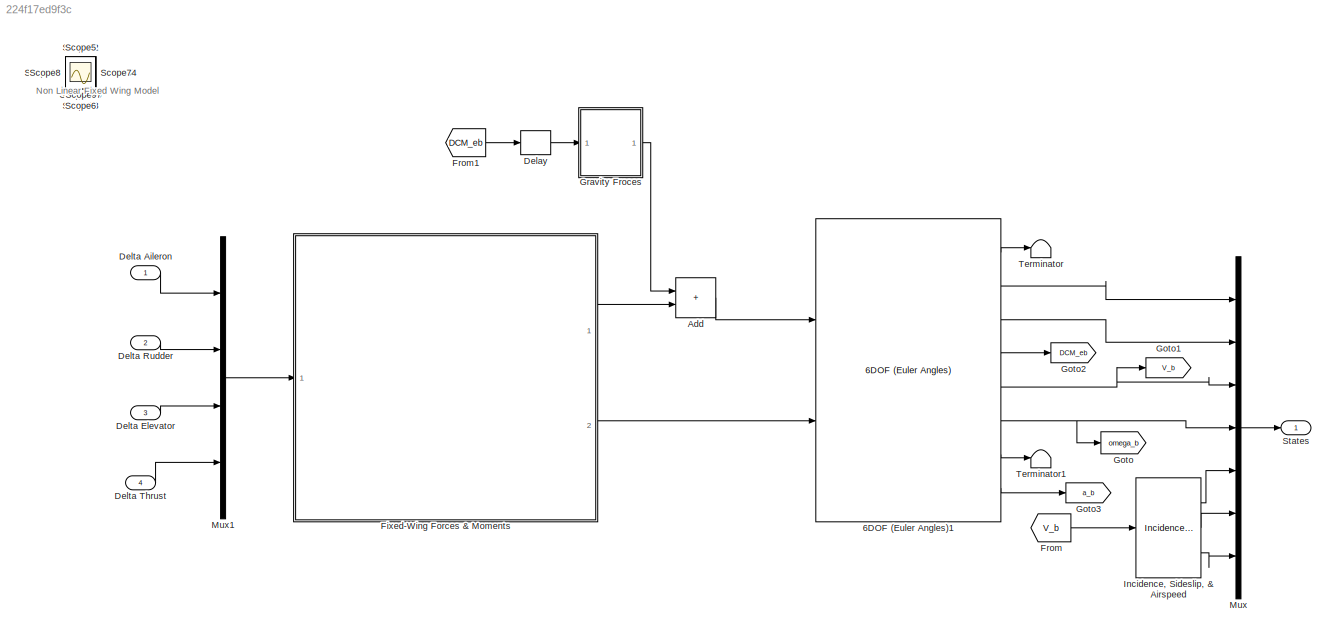
MODEL slx_224f17ed9f3c
KIND model
CONFIG AbsTol = auto
CONFIG EnableMultiTasking = off
CONFIG FixedStep = 0.01
CONFIG MaxStep = auto
CONFIG MinStep = auto
CONFIG RelTol = 1e-3
CONFIG SampleTimeConstraint = Unconstrained
CONFIG SolverName = ode4
CONFIG StartTime = 0.0
CONFIG StopTime = 200
WORKSPACE source: external: MAT-File  (data not in archive)
BLOCK [Reference] 6DOF (Euler Angles)1  REF=shared6dof/6DOF (Euler Angles)
  Ports = [2, 8]
  SourceBlock = shared6dof/6DOF (Euler Angles)
  SourceProductBaseCode = AE,PW,DR,MT,VE
  SourceType = 6DOF EoM (Body Axis)
BLOCK [Sum] Add
  IconShape = rectangular
  Inputs = 2
  Ports = [2, 1]
BLOCK [Delay] Delay
  DelayLength = 1
  InitialCondition = inv([cos(theta_0)*cos(psi_0) , (sin(phi_0)*sin(theta_0)*cos(psi_0)-cos(phi_0)*sin(psi_0)) , (cos(phi_0)*sin(theta_0)*cos(psi_0)+sin(phi_0)*sin(psi_0)) ; cos(theta_0)*sin(psi_0) , (sin(phi_0)*sin(theta_0)*sin(psi_0)+cos(phi_0)*cos(psi_0)) , (cos(phi_0)*sin(theta_0)*sin(psi_0)-sin(phi_0)*cos(psi_0)) ;  -sin(theta_0) ,  sin(phi_0)*cos(theta_0)  , cos(phi_0)*cos(theta_0)])
  InputPortMap = u0
  Ports = [1, 1]
BLOCK [Inport] Delta Aileron
BLOCK [Inport] Delta Elevator
  Port = 3
BLOCK [Inport] Delta Rudder
  Port = 2
BLOCK [Inport] Delta Thrust
  Port = 4
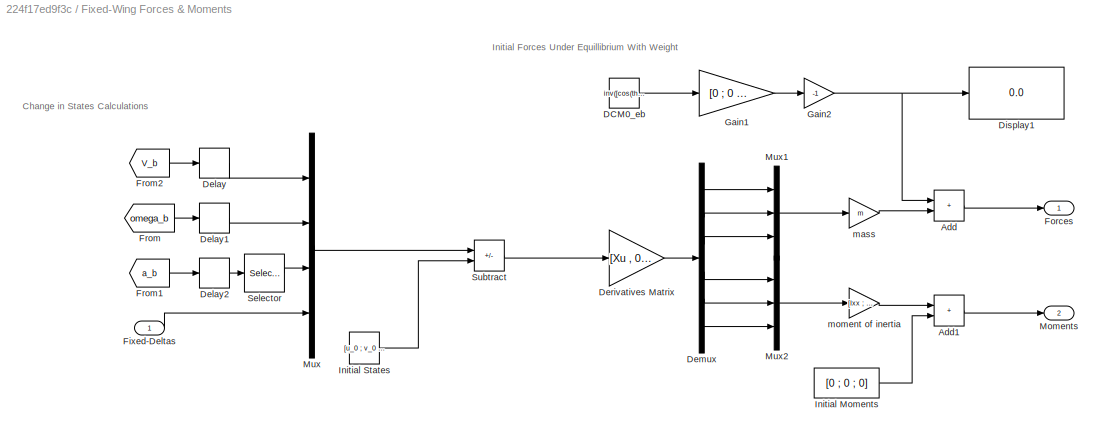
BLOCK [SubSystem] Fixed-Wing Forces & Moments
  Ports = [1, 2]
  RequestExecContextInheritance = off
BLOCK [Sum] Fixed-Wing Forces & Moments/Add
  IconShape = rectangular
  Ports = [2, 1]
BLOCK [Sum] Fixed-Wing Forces & Moments/Add1
  IconShape = rectangular
  Ports = [2, 1]
BLOCK [Constant] Fixed-Wing Forces & Moments/DCM0_eb
  Value = inv([cos(theta_0)*cos(psi_0) , (sin(phi_0)*sin(theta_0)*cos(psi_0)-cos(phi_0)*sin(psi_0)) , (cos(phi_0)*sin(theta_0)*cos(psi_0)+sin(phi_0)*sin(psi_0)) ; cos(theta_0)*sin(psi_0) , (sin(phi_0)*sin(theta_0)*sin(psi_0)+cos(phi_0)*cos(psi_0)) , (cos(phi_0)*sin(theta_0)*sin(psi_0)-sin(phi_0)*cos(psi_0)) ;  -sin(theta_0) ,  sin(phi_0)*cos(theta_0)  , cos(phi_0)*cos(theta_0)])
BLOCK [Delay] Fixed-Wing Forces & Moments/Delay
  DelayLength = 1
  InitialCondition = [u_0 v_0 w_0]
  InputPortMap = u0
  Ports = [1, 1]
BLOCK [Delay] Fixed-Wing Forces & Moments/Delay1
  DelayLength = 1
  InitialCondition = [p_0 q_0 r_0]
  InputPortMap = u0
  Ports = [1, 1]
BLOCK [Delay] Fixed-Wing Forces & Moments/Delay2
  DelayLength = 1
  InitialCondition = [0 0 wdot_0]
  InputPortMap = u0
  Ports = [1, 1]
BLOCK [Demux] Fixed-Wing Forces & Moments/Demux
  Outputs = 6
  Ports = [1, 6]
BLOCK [Gain] Fixed-Wing Forces & Moments/Derivatives Matrix
  Gain = [Xu , 0 , Xw , 0 , 0 , 0 , 0 , 0 , 0 , Xdel_e, Xdel_t ; 0 , Yv , 0 , 0 , 0 , 0 , 0 , 0 , Ydel_r , 0 , 0 ; Zu , 0 , Zw , 0 , Zq , 0 , Zw_dot , 0 , 0 , Zdel_e , Zdel_t ; 0 , Lv , 0 , Lp , 0 , Lr , 0 , Ldel_a , Ldel_r , 0 , 0 ; Mu , 0 , Mw , 0 , Mq , 0 , Mw_dot , 0 , 0 , Mdel_e , Mdel_t ; 0 , Nv , 0 , Np , 0 , Nr , 0 , Ndel_a , Ndel_r , 0 , 0]
  Multiplication = Matrix(K*u)
BLOCK [Display] Fixed-Wing Forces & Moments/Display1
  Decimation = 4
  Ports = [1]
BLOCK [Inport] Fixed-Wing Forces & Moments/Fixed-Deltas
BLOCK [Outport] Fixed-Wing Forces & Moments/Forces
BLOCK [From] Fixed-Wing Forces & Moments/From
  GotoTag = omega_b
  TagVisibility = global
BLOCK [From] Fixed-Wing Forces & Moments/From1
  GotoTag = a_b
  TagVisibility = global
BLOCK [From] Fixed-Wing Forces & Moments/From2
  GotoTag = V_b
  TagVisibility = global
BLOCK [Gain] Fixed-Wing Forces & Moments/Gain1
  Gain = [0 ; 0 ; m*g]
  Multiplication = Matrix(u*K)
BLOCK [Gain] Fixed-Wing Forces & Moments/Gain2
  Gain = -1
BLOCK [Constant] Fixed-Wing Forces & Moments/Initial Moments
  Value = [0 ; 0 ; 0]
BLOCK [Constant] Fixed-Wing Forces & Moments/Initial States
  Value = [u_0 ; v_0 ; w_0 ; p_0 ; q_0 ; r_0 ; wdot_0 ; 0 ; 0 ; 0 ; 0]
BLOCK [Outport] Fixed-Wing Forces & Moments/Moments 
  Port = 2
BLOCK [Mux] Fixed-Wing Forces & Moments/Mux
  DisplayOption = bar
  Ports = [4, 1]
BLOCK [Mux] Fixed-Wing Forces & Moments/Mux1
  DisplayOption = bar
  Inputs = 3
  Ports = [3, 1]
BLOCK [Mux] Fixed-Wing Forces & Moments/Mux2
  DisplayOption = bar
  Inputs = 3
  Ports = [3, 1]
BLOCK [Selector] Fixed-Wing Forces & Moments/Selector
  IndexOptions = Starting index (dialog)
  Indices = 3
  InputPortWidth = 3
  OutputSizes = 1
  Ports = [1, 1]
BLOCK [Sum] Fixed-Wing Forces & Moments/Subtract
  IconShape = rectangular
  Inputs = +-
  Ports = [2, 1]
BLOCK [Gain] Fixed-Wing Forces & Moments/mass
  Gain = m
BLOCK [Gain] Fixed-Wing Forces & Moments/moment of inertia
  Gain = [Ixx ; Iyy ; Izz]
BLOCK [From] From
  GotoTag = V_b
  TagVisibility = global
BLOCK [From] From1
  GotoTag = DCM_eb
  TagVisibility = global
BLOCK [Goto] Goto
  GotoTag = omega_b
  TagVisibility = global
BLOCK [Goto] Goto1
  GotoTag = V_b
  TagVisibility = global
BLOCK [Goto] Goto2
  GotoTag = DCM_eb
  TagVisibility = global
BLOCK [Goto] Goto3
  GotoTag = a_b
  TagVisibility = global
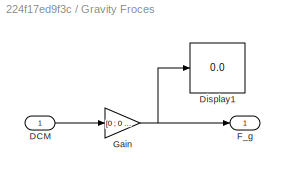
BLOCK [SubSystem] Gravity Froces
  Ports = [1, 1]
  RequestExecContextInheritance = off
BLOCK [Inport] Gravity Froces/DCM
BLOCK [Display] Gravity Froces/Display1
  Decimation = 1
  Ports = [1]
BLOCK [Outport] Gravity Froces/F_g
BLOCK [Gain] Gravity Froces/Gain
  Gain = [0 ; 0 ; m*g]
  Multiplication = Matrix(u*K)
BLOCK [Reference] Incidence, Sideslip, & Airspeed  REF=aerolibasang/Incidence, Sideslip,
& Airspeed
  Ports = [1, 3]
  SourceBlock = aerolibasang/Incidence, Sideslip,\n& Airspeed
  SourceProductBaseCode = AE
  SourceType = Incidence,Sideslip,&Airspeed
BLOCK [Mux] Mux
  DisplayOption = bar
  Inputs = 7
  Ports = [7, 1]
BLOCK [Mux] Mux1
  DisplayOption = bar
  Ports = [4, 1]
BLOCK [Scope] Scope
  Floating = off
  IOType = viewer
  NumInputPorts = 1
  Ports = []
  ScopeSpecificationString = Simulink.scopes.TimeScopeBlockCfg('CurrentConfiguration', extmgr.ConfigurationSet(extmgr.Configuration('Core','General UI',true),extmgr.Configuration('Core','Source UI',true),extmgr.Configuration('Sources','WiredSimulink',true,'DataLoggingVariableName','ScopeData3'),extmgr.Configuration('Visuals','Time Domain',true,'SerializedDisplays',{struct('MinYLimReal','-70.62606','MaxYLimReal','655.63458','Y...<+1463ch>
BLOCK [Scope] Scope1
  Floating = off
  IOType = viewer
  NumInputPorts = 1
  Ports = []
  ScopeSpecificationString = Simulink.scopes.TimeScopeBlockCfg('CurrentConfiguration', extmgr.ConfigurationSet(extmgr.Configuration('Core','General UI',true),extmgr.Configuration('Core','Source UI',true),extmgr.Configuration('Sources','WiredSimulink',true),extmgr.Configuration('Visuals','Time Domain',true,'SerializedDisplays',{struct('MinYLimReal','-3.91421','MaxYLimReal','3.92544','YLabelReal','','MinYLimMag','0.00000','MaxY...<+1414ch>
BLOCK [Scope] Scope10
  Floating = off
  IOType = viewer
  NumInputPorts = 1
  Ports = []
  ScopeSpecificationString = Simulink.scopes.TimeScopeBlockCfg('CurrentConfiguration', extmgr.ConfigurationSet(extmgr.Configuration('Core','General UI',true),extmgr.Configuration('Core','Source UI',true),extmgr.Configuration('Sources','WiredSimulink',true,'DataLoggingVariableName','ScopeData1'),extmgr.Configuration('Visuals','Time Domain',true,'SerializedDisplays',{struct('MinYLimReal','-4.53719','MaxYLimReal','4.28173','YLab...<+1359ch>
BLOCK [Scope] Scope11
  Floating = off
  IOType = viewer
  NumInputPorts = 1
  Ports = []
  ScopeSpecificationString = Simulink.scopes.TimeScopeBlockCfg('CurrentConfiguration', extmgr.ConfigurationSet(extmgr.Configuration('Core','General UI',true),extmgr.Configuration('Core','Source UI',true),extmgr.Configuration('Sources','WiredSimulink',true,'DataLoggingVariableName','ScopeData2'),extmgr.Configuration('Visuals','Time Domain',true,'SerializedDisplays',{struct('MinYLimReal','-176.04991','MaxYLimReal','186.78434','...<+1373ch>
BLOCK [Scope] Scope12
  Floating = off
  IOType = viewer
  NumInputPorts = 1
  Ports = []
  ScopeSpecificationString = Simulink.scopes.TimeScopeBlockCfg('CurrentConfiguration', extmgr.ConfigurationSet(extmgr.Configuration('Core','General UI',true),extmgr.Configuration('Core','Source UI',true),extmgr.Configuration('Sources','WiredSimulink',true,'DataLoggingVariableName','ScopeData1'),extmgr.Configuration('Visuals','Time Domain',true,'SerializedDisplays',{struct('MinYLimReal','-152336.40269','MaxYLimReal','1167738.0...<+1622ch>
BLOCK [Scope] Scope13
  Floating = off
  IOType = viewer
  NumInputPorts = 1
  Ports = []
  ScopeSpecificationString = Simulink.scopes.TimeScopeBlockCfg('CurrentConfiguration', extmgr.ConfigurationSet(extmgr.Configuration('Core','General UI',true),extmgr.Configuration('Core','Source UI',true),extmgr.Configuration('Sources','WiredSimulink',true,'DataLoggingVariableName','ScopeData2'),extmgr.Configuration('Visuals','Time Domain',true,'SerializedDisplays',{struct('MinYLimReal','-208.71984','MaxYLimReal','1195.74413',...<+1594ch>
BLOCK [Scope] Scope14
  Floating = off
  IOType = viewer
  NumInputPorts = 1
  Ports = []
  ScopeSpecificationString = Simulink.scopes.TimeScopeBlockCfg('CurrentConfiguration', extmgr.ConfigurationSet(extmgr.Configuration('Core','General UI',true),extmgr.Configuration('Core','Source UI',true),extmgr.Configuration('Sources','WiredSimulink',true,'DataLoggingVariableName','ScopeData5'),extmgr.Configuration('Visuals','Time Domain',true,'SerializedDisplays',{struct('MinYLimReal','-0.25495','MaxYLimReal','0.37727','YLab...<+1455ch>
BLOCK [Scope] Scope15
  Floating = off
  IOType = viewer
  NumInputPorts = 1
  Ports = []
  ScopeSpecificationString = Simulink.scopes.TimeScopeBlockCfg('CurrentConfiguration', extmgr.ConfigurationSet(extmgr.Configuration('Core','General UI',true),extmgr.Configuration('Core','Source UI',true),extmgr.Configuration('Sources','WiredSimulink',true,'DataLoggingVariableName','ScopeData4'),extmgr.Configuration('Visuals','Time Domain',true,'SerializedDisplays',{struct('MinYLimReal','-0.19614','MaxYLimReal','0.68947','YLab...<+1532ch>
BLOCK [Scope] Scope16
  Floating = off
  IOType = viewer
  NumInputPorts = 1
  Ports = []
  ScopeSpecificationString = Simulink.scopes.TimeScopeBlockCfg('CurrentConfiguration', extmgr.ConfigurationSet(extmgr.Configuration('Core','General UI',true),extmgr.Configuration('Core','Source UI',true),extmgr.Configuration('Sources','WiredSimulink',true,'DataLoggingVariableName','ScopeData1'),extmgr.Configuration('Visuals','Time Domain',true,'SerializedDisplays',{struct('MinYLimReal','5.85701','MaxYLimReal','8.17121','YLabe...<+1432ch>
BLOCK [Scope] Scope17
  Floating = off
  IOType = viewer
  NumInputPorts = 1
  Ports = []
  ScopeSpecificationString = Simulink.scopes.TimeScopeBlockCfg('CurrentConfiguration', extmgr.ConfigurationSet(extmgr.Configuration('Core','General UI',true),extmgr.Configuration('Core','Source UI',true),extmgr.Configuration('Sources','WiredSimulink',true,'DataLoggingVariableName','ScopeData2'),extmgr.Configuration('Visuals','Time Domain',true,'SerializedDisplays',{struct('MinYLimReal','-4.58504','MaxYLimReal','0.50945','YLab...<+1434ch>
BLOCK [Scope] Scope18
  Floating = off
  IOType = viewer
  NumInputPorts = 1
  Ports = []
  ScopeSpecificationString = Simulink.scopes.TimeScopeBlockCfg('CurrentConfiguration', extmgr.ConfigurationSet(extmgr.Configuration('Core','General UI',true),extmgr.Configuration('Core','Source UI',true),extmgr.Configuration('Sources','WiredSimulink',true,'DataLoggingVariableName','ScopeData3'),extmgr.Configuration('Visuals','Time Domain',true,'SerializedDisplays',{struct('MinYLimReal','-224.98351','MaxYLimReal','224.99441','...<+1468ch>
BLOCK [Scope] Scope19
  Floating = off
  IOType = viewer
  NumInputPorts = 1
  Ports = []
  ScopeSpecificationString = Simulink.scopes.TimeScopeBlockCfg('CurrentConfiguration', extmgr.ConfigurationSet(extmgr.Configuration('Core','General UI',true),extmgr.Configuration('Core','Source UI',true),extmgr.Configuration('Sources','WiredSimulink',true,'DataLoggingVariableName','ScopeData4'),extmgr.Configuration('Visuals','Time Domain',true,'SerializedDisplays',{struct('MinYLimReal','-3.92696','MaxYLimReal','3.92679','YLab...<+1437ch>
BLOCK [Scope] Scope2
  Floating = off
  IOType = viewer
  NumInputPorts = 1
  Ports = []
  ScopeSpecificationString = Simulink.scopes.TimeScopeBlockCfg('CurrentConfiguration', extmgr.ConfigurationSet(extmgr.Configuration('Core','General UI',true),extmgr.Configuration('Core','Source UI',true),extmgr.Configuration('Sources','WiredSimulink',true,'DataLoggingVariableName','ScopeData1'),extmgr.Configuration('Visuals','Time Domain',true,'SerializedDisplays',{struct('MinYLimReal','-83.6041','MaxYLimReal','100.12109','YL...<+1396ch>
BLOCK [Scope] Scope20
  Floating = off
  IOType = viewer
  NumInputPorts = 1
  Ports = []
  ScopeSpecificationString = Simulink.scopes.TimeScopeBlockCfg('CurrentConfiguration', extmgr.ConfigurationSet(extmgr.Configuration('Core','General UI',true),extmgr.Configuration('Core','Source UI',true),extmgr.Configuration('Sources','WiredSimulink',true,'DataLoggingVariableName','ScopeData1'),extmgr.Configuration('Visuals','Time Domain',true,'SerializedDisplays',{struct('MinYLimReal','-8005.9877','MaxYLimReal','72053.88926'...<+1381ch>
BLOCK [Scope] Scope21
  Floating = off
  IOType = viewer
  NumInputPorts = 1
  Ports = []
  ScopeSpecificationString = Simulink.scopes.TimeScopeBlockCfg('CurrentConfiguration', extmgr.ConfigurationSet(extmgr.Configuration('Core','General UI',true),extmgr.Configuration('Core','Source UI',true),extmgr.Configuration('Sources','WiredSimulink',true,'DataLoggingVariableName','ScopeData2'),extmgr.Configuration('Visuals','Time Domain',true,'SerializedDisplays',{struct('MinYLimReal','-32585.50824','MaxYLimReal','3620.61203...<+1387ch>
BLOCK [Scope] Scope22
  Floating = off
  IOType = viewer
  NumInputPorts = 1
  Ports = []
  ScopeSpecificationString = Simulink.scopes.TimeScopeBlockCfg('CurrentConfiguration', extmgr.ConfigurationSet(extmgr.Configuration('Core','General UI',true),extmgr.Configuration('Core','Source UI',true),extmgr.Configuration('Sources','WiredSimulink',true,'DataLoggingVariableName','ScopeData3'),extmgr.Configuration('Visuals','Time Domain',true,'SerializedDisplays',{struct('MinYLimReal','-21364.91072','MaxYLimReal','-7715.8035...<+1389ch>
BLOCK [Scope] Scope23
  Floating = off
  IOType = viewer
  NumInputPorts = 1
  Ports = []
  ScopeSpecificationString = Simulink.scopes.TimeScopeBlockCfg('CurrentConfiguration', extmgr.ConfigurationSet(extmgr.Configuration('Core','General UI',true),extmgr.Configuration('Core','Source UI',true),extmgr.Configuration('Sources','WiredSimulink',true,'DataLoggingVariableName','ScopeData4'),extmgr.Configuration('Visuals','Time Domain',true,'SerializedDisplays',{struct('MinYLimReal','-70.16432','MaxYLimReal','7.79604','YLa...<+1391ch>
BLOCK [Scope] Scope24
  Floating = off
  IOType = viewer
  NumInputPorts = 1
  Ports = []
  ScopeSpecificationString = Simulink.scopes.TimeScopeBlockCfg('CurrentConfiguration', extmgr.ConfigurationSet(extmgr.Configuration('Core','General UI',true),extmgr.Configuration('Core','Source UI',true),extmgr.Configuration('Sources','WiredSimulink',true,'DataLoggingVariableName','ScopeData5'),extmgr.Configuration('Visuals','Time Domain',true,'SerializedDisplays',{struct('MinYLimReal','-4.21089','MaxYLimReal','8.02343','YLab...<+1359ch>
BLOCK [Scope] Scope25
  Floating = off
  IOType = viewer
  NumInputPorts = 1
  Ports = []
  ScopeSpecificationString = Simulink.scopes.TimeScopeBlockCfg('CurrentConfiguration', extmgr.ConfigurationSet(extmgr.Configuration('Core','General UI',true),extmgr.Configuration('Core','Source UI',true),extmgr.Configuration('Sources','WiredSimulink',true,'DataLoggingVariableName','ScopeData6'),extmgr.Configuration('Visuals','Time Domain',true,'SerializedDisplays',{struct('MinYLimReal','-224.98435','MaxYLimReal','224.97496','...<+1373ch>
BLOCK [Scope] Scope26
  Floating = off
  IOType = viewer
  NumInputPorts = 1
  Ports = []
  ScopeSpecificationString = Simulink.scopes.TimeScopeBlockCfg('CurrentConfiguration', extmgr.ConfigurationSet(extmgr.Configuration('Core','General UI',true),extmgr.Configuration('Core','Source UI',true),extmgr.Configuration('Sources','WiredSimulink',true,'DataLoggingVariableName','ScopeData7'),extmgr.Configuration('Visuals','Time Domain',true,'SerializedDisplays',{struct('MinYLimReal','485.34947','MaxYLimReal','685.34947','Y...<+1373ch>
BLOCK [Scope] Scope27
  Floating = off
  IOType = viewer
  NumInputPorts = 1
  Ports = []
  ScopeSpecificationString = Simulink.scopes.TimeScopeBlockCfg('CurrentConfiguration', extmgr.ConfigurationSet(extmgr.Configuration('Core','General UI',true),extmgr.Configuration('Core','Source UI',true),extmgr.Configuration('Sources','WiredSimulink',true,'DataLoggingVariableName','ScopeData8'),extmgr.Configuration('Visuals','Time Domain',true,'SerializedDisplays',{struct('MinYLimReal','-1.31688','MaxYLimReal','11.85193','YLa...<+1363ch>
BLOCK [Scope] Scope28
  Floating = off
  IOType = viewer
  NumInputPorts = 1
  Ports = []
  ScopeSpecificationString = Simulink.scopes.TimeScopeBlockCfg('CurrentConfiguration', extmgr.ConfigurationSet(extmgr.Configuration('Core','General UI',true),extmgr.Configuration('Core','Source UI',true),extmgr.Configuration('Sources','WiredSimulink',true,'DataLoggingVariableName','ScopeData9'),extmgr.Configuration('Visuals','Time Domain',true,'SerializedDisplays',{struct('MinYLimReal','17.60438','MaxYLimReal','37.60438','YLa...<+1365ch>
BLOCK [Scope] Scope29
  Floating = off
  IOType = viewer
  NumInputPorts = 1
  Ports = []
  ScopeSpecificationString = Simulink.scopes.TimeScopeBlockCfg('CurrentConfiguration', extmgr.ConfigurationSet(extmgr.Configuration('Core','General UI',true),extmgr.Configuration('Core','Source UI',true),extmgr.Configuration('Sources','WiredSimulink',true,'DataLoggingVariableName','ScopeData10'),extmgr.Configuration('Visuals','Time Domain',true,'SerializedDisplays',{struct('MinYLimReal','-0.90969','MaxYLimReal','0.10108','YLa...<+1360ch>
BLOCK [Scope] Scope3
  Floating = off
  IOType = viewer
  NumInputPorts = 1
  Ports = []
  ScopeSpecificationString = Simulink.scopes.TimeScopeBlockCfg('CurrentConfiguration', extmgr.ConfigurationSet(extmgr.Configuration('Core','General UI',true),extmgr.Configuration('Core','Source UI',true),extmgr.Configuration('Sources','WiredSimulink',true,'DataLoggingVariableName','ScopeData2'),extmgr.Configuration('Visuals','Time Domain',true,'SerializedDisplays',{struct('MinYLimReal','-95.79709','MaxYLimReal','10.68291','YL...<+1394ch>
BLOCK [Scope] Scope30
  Floating = off
  IOType = viewer
  NumInputPorts = 1
  Ports = []
  ScopeSpecificationString = Simulink.scopes.TimeScopeBlockCfg('CurrentConfiguration', extmgr.ConfigurationSet(extmgr.Configuration('Core','General UI',true),extmgr.Configuration('Core','Source UI',true),extmgr.Configuration('Sources','WiredSimulink',true,'DataLoggingVariableName','ScopeData11'),extmgr.Configuration('Visuals','Time Domain',true,'SerializedDisplays',{struct('MinYLimReal','-0.48575','MaxYLimReal','4.37179','YLa...<+1360ch>
BLOCK [Scope] Scope31
  Floating = off
  IOType = viewer
  NumInputPorts = 1
  Ports = []
  ScopeSpecificationString = Simulink.scopes.TimeScopeBlockCfg('CurrentConfiguration', extmgr.ConfigurationSet(extmgr.Configuration('Core','General UI',true),extmgr.Configuration('Core','Source UI',true),extmgr.Configuration('Sources','WiredSimulink',true,'DataLoggingVariableName','ScopeData12'),extmgr.Configuration('Visuals','Time Domain',true,'SerializedDisplays',{struct('MinYLimReal','-2.47708','MaxYLimReal','0.27523','YLa...<+1360ch>
BLOCK [Scope] Scope32
  Floating = off
  IOType = viewer
  NumInputPorts = 1
  Ports = []
  ScopeSpecificationString = Simulink.scopes.TimeScopeBlockCfg('CurrentConfiguration', extmgr.ConfigurationSet(extmgr.Configuration('Core','General UI',true),extmgr.Configuration('Core','Source UI',true),extmgr.Configuration('Sources','WiredSimulink',true,'DataLoggingVariableName','ScopeData13'),extmgr.Configuration('Visuals','Time Domain',true,'SerializedDisplays',{struct('MinYLimReal','6.73636','MaxYLimReal','7.25975','YLab...<+1358ch>
BLOCK [Scope] Scope33
  Floating = off
  IOType = viewer
  NumInputPorts = 1
  Ports = []
  ScopeSpecificationString = Simulink.scopes.TimeScopeBlockCfg('CurrentConfiguration', extmgr.ConfigurationSet(extmgr.Configuration('Core','General UI',true),extmgr.Configuration('Core','Source UI',true),extmgr.Configuration('Sources','WiredSimulink',true,'DataLoggingVariableName','ScopeData14'),extmgr.Configuration('Visuals','Time Domain',true,'SerializedDisplays',{struct('MinYLimReal','-0.66151','MaxYLimReal','0.07405','YLa...<+1360ch>
BLOCK [Scope] Scope34
  Floating = off
  IOType = viewer
  NumInputPorts = 1
  Ports = []
  ScopeSpecificationString = Simulink.scopes.TimeScopeBlockCfg('CurrentConfiguration', extmgr.ConfigurationSet(extmgr.Configuration('Core','General UI',true),extmgr.Configuration('Core','Source UI',true),extmgr.Configuration('Sources','WiredSimulink',true,'DataLoggingVariableName','ScopeData1'),extmgr.Configuration('Visuals','Time Domain',true,'SerializedDisplays',{struct('MinYLimReal','-10.00000','MaxYLimReal','10.00000','YL...<+1365ch>
BLOCK [Scope] Scope35
  Floating = off
  IOType = viewer
  NumInputPorts = 1
  Ports = []
  ScopeSpecificationString = Simulink.scopes.TimeScopeBlockCfg('CurrentConfiguration', extmgr.ConfigurationSet(extmgr.Configuration('Core','General UI',true),extmgr.Configuration('Core','Source UI',true),extmgr.Configuration('Sources','WiredSimulink',true,'DataLoggingVariableName','ScopeData2'),extmgr.Configuration('Visuals','Time Domain',true,'SerializedDisplays',{struct('MinYLimReal','-10.00000','MaxYLimReal','10.00000','YL...<+1365ch>
BLOCK [Scope] Scope4
  Floating = off
  IOType = viewer
  NumInputPorts = 1
  Ports = []
  ScopeSpecificationString = Simulink.scopes.TimeScopeBlockCfg('CurrentConfiguration', extmgr.ConfigurationSet(extmgr.Configuration('Core','General UI',true),extmgr.Configuration('Core','Source UI',true),extmgr.Configuration('Sources','WiredSimulink',true,'DataLoggingVariableName','ScopeData1'),extmgr.Configuration('Visuals','Time Domain',true,'SerializedDisplays',{struct('MinYLimReal','4.375','MaxYLimReal','10.625','YLabelRe...<+1452ch>
BLOCK [Scope] Scope5
  Floating = off
  IOType = viewer
  NumInputPorts = 1
  Ports = []
  ScopeSpecificationString = Simulink.scopes.TimeScopeBlockCfg('CurrentConfiguration', extmgr.ConfigurationSet(extmgr.Configuration('Core','General UI',true),extmgr.Configuration('Core','Source UI',true),extmgr.Configuration('Sources','WiredSimulink',true,'DataLoggingVariableName','ScopeData2'),extmgr.Configuration('Visuals','Time Domain',true,'SerializedDisplays',{struct('MinYLimReal','3.125','MaxYLimReal','21.875','YLabelRe...<+1452ch>
BLOCK [Scope] Scope6
  Floating = off
  IOType = viewer
  NumInputPorts = 1
  Ports = []
  ScopeSpecificationString = Simulink.scopes.TimeScopeBlockCfg('CurrentConfiguration', extmgr.ConfigurationSet(extmgr.Configuration('Core','General UI',true),extmgr.Configuration('Core','Source UI',true),extmgr.Configuration('Sources','WiredSimulink',true,'DataLoggingVariableName','ScopeData1'),extmgr.Configuration('Visuals','Time Domain',true,'SerializedDisplays',{struct('MinYLimReal','-10.00000','MaxYLimReal','10.00000','YL...<+1365ch>
BLOCK [Scope] Scope7
  Floating = off
  IOType = viewer
  NumInputPorts = 1
  Ports = []
  ScopeSpecificationString = Simulink.scopes.TimeScopeBlockCfg('CurrentConfiguration', extmgr.ConfigurationSet(extmgr.Configuration('Core','General UI',true),extmgr.Configuration('Core','Source UI',true),extmgr.Configuration('Sources','WiredSimulink',true,'DataLoggingVariableName','ScopeData2'),extmgr.Configuration('Visuals','Time Domain',true,'SerializedDisplays',{struct('MinYLimReal','-10.00000','MaxYLimReal','10.00000','YL...<+1365ch>
BLOCK [Scope] Scope8
  Floating = off
  IOType = viewer
  NumInputPorts = 1
  Ports = []
  ScopeSpecificationString = Simulink.scopes.TimeScopeBlockCfg('CurrentConfiguration', extmgr.ConfigurationSet(extmgr.Configuration('Core','General UI',true),extmgr.Configuration('Core','Source UI',true),extmgr.Configuration('Sources','WiredSimulink',true,'DataLoggingVariableName','ScopeData3'),extmgr.Configuration('Visuals','Time Domain',true,'SerializedDisplays',{struct('MinYLimReal','-10.00000','MaxYLimReal','10.00000','YL...<+1365ch>
BLOCK [Scope] Scope9
  Floating = off
  IOType = viewer
  NumInputPorts = 1
  Ports = []
  ScopeSpecificationString = Simulink.scopes.TimeScopeBlockCfg('CurrentConfiguration', extmgr.ConfigurationSet(extmgr.Configuration('Core','General UI',true),extmgr.Configuration('Core','Source UI',true),extmgr.Configuration('Sources','WiredSimulink',true,'DataLoggingVariableName','ScopeData4'),extmgr.Configuration('Visuals','Time Domain',true,'SerializedDisplays',{struct('MinYLimReal','-10.00000','MaxYLimReal','10.00000','YL...<+1365ch>
BLOCK [Outport] States
BLOCK [Terminator] Terminator
BLOCK [Terminator] Terminator1
ANNOTATION (root): Non Linear Fixed Wing Model
ANNOTATION Fixed-Wing Forces & Moments: Change in States Calculations
ANNOTATION Fixed-Wing Forces & Moments: Initial Forces Under Equillibrium With Weight
LINE 6DOF (Euler Angles)1:1 -> Terminator:1
LINE 6DOF (Euler Angles)1:2 -> Mux:1
LINE 6DOF (Euler Angles)1:3 -> Mux:2
LINE 6DOF (Euler Angles)1:4 -> Goto2:1
NET 6DOF (Euler Angles)1:5 -> Goto1:1, Mux:3
NET 6DOF (Euler Angles)1:6 -> Goto:1, Mux:4
LINE 6DOF (Euler Angles)1:7 -> Terminator1:1
LINE 6DOF (Euler Angles)1:8 -> Goto3:1
LINE Add:1 -> 6DOF (Euler Angles)1:1
LINE Delay:1 -> Gravity Froces:1
LINE Delta Aileron:1 -> Mux1:1
LINE Delta Elevator:1 -> Mux1:3
LINE Delta Rudder:1 -> Mux1:2
LINE Delta Thrust:1 -> Mux1:4
LINE Fixed-Wing Forces & Moments/Add1:1 -> Fixed-Wing Forces & Moments/Moments :1
LINE Fixed-Wing Forces & Moments/Add:1 -> Fixed-Wing Forces & Moments/Forces:1
LINE Fixed-Wing Forces & Moments/DCM0_eb:1 -> Fixed-Wing Forces & Moments/Gain1:1
LINE Fixed-Wing Forces & Moments/Delay1:1 -> Fixed-Wing Forces & Moments/Mux:2
LINE Fixed-Wing Forces & Moments/Delay2:1 -> Fixed-Wing Forces & Moments/Selector:1
LINE Fixed-Wing Forces & Moments/Delay:1 -> Fixed-Wing Forces & Moments/Mux:1
LINE Fixed-Wing Forces & Moments/Demux:1 -> Fixed-Wing Forces & Moments/Mux1:1
LINE Fixed-Wing Forces & Moments/Demux:2 -> Fixed-Wing Forces & Moments/Mux1:2
LINE Fixed-Wing Forces & Moments/Demux:3 -> Fixed-Wing Forces & Moments/Mux1:3
LINE Fixed-Wing Forces & Moments/Demux:4 -> Fixed-Wing Forces & Moments/Mux2:1
LINE Fixed-Wing Forces & Moments/Demux:5 -> Fixed-Wing Forces & Moments/Mux2:2
LINE Fixed-Wing Forces & Moments/Demux:6 -> Fixed-Wing Forces & Moments/Mux2:3
LINE Fixed-Wing Forces & Moments/Derivatives Matrix:1 -> Fixed-Wing Forces & Moments/Demux:1
LINE Fixed-Wing Forces & Moments/Fixed-Deltas:1 -> Fixed-Wing Forces & Moments/Mux:4
LINE Fixed-Wing Forces & Moments/From1:1 -> Fixed-Wing Forces & Moments/Delay2:1
LINE Fixed-Wing Forces & Moments/From2:1 -> Fixed-Wing Forces & Moments/Delay:1
LINE Fixed-Wing Forces & Moments/From:1 -> Fixed-Wing Forces & Moments/Delay1:1
LINE Fixed-Wing Forces & Moments/Gain1:1 -> Fixed-Wing Forces & Moments/Gain2:1
NET Fixed-Wing Forces & Moments/Gain2:1 -> Fixed-Wing Forces & Moments/Add:1, Fixed-Wing Forces & Moments/Display1:1
LINE Fixed-Wing Forces & Moments/Initial Moments:1 -> Fixed-Wing Forces & Moments/Add1:2
LINE Fixed-Wing Forces & Moments/Initial States:1 -> Fixed-Wing Forces & Moments/Subtract:2
LINE Fixed-Wing Forces & Moments/Mux1:1 -> Fixed-Wing Forces & Moments/mass:1
LINE Fixed-Wing Forces & Moments/Mux2:1 -> Fixed-Wing Forces & Moments/moment of inertia:1
LINE Fixed-Wing Forces & Moments/Mux:1 -> Fixed-Wing Forces & Moments/Subtract:1
LINE Fixed-Wing Forces & Moments/Selector:1 -> Fixed-Wing Forces & Moments/Mux:3
LINE Fixed-Wing Forces & Moments/Subtract:1 -> Fixed-Wing Forces & Moments/Derivatives Matrix:1
LINE Fixed-Wing Forces & Moments/mass:1 -> Fixed-Wing Forces & Moments/Add:2
LINE Fixed-Wing Forces & Moments/moment of inertia:1 -> Fixed-Wing Forces & Moments/Add1:1
LINE Fixed-Wing Forces & Moments:1 -> Add:2
LINE Fixed-Wing Forces & Moments:2 -> 6DOF (Euler Angles)1:2
LINE From1:1 -> Delay:1
LINE From:1 -> Incidence, Sideslip, & Airspeed:1
LINE Gravity Froces/DCM:1 -> Gravity Froces/Gain:1
NET Gravity Froces/Gain:1 -> Gravity Froces/Display1:1, Gravity Froces/F_g:1
LINE Gravity Froces:1 -> Add:1
LINE Incidence, Sideslip, & Airspeed:1 -> Mux:5
LINE Incidence, Sideslip, & Airspeed:2 -> Mux:6
LINE Incidence, Sideslip, & Airspeed:3 -> Mux:7
LINE Mux1:1 -> Fixed-Wing Forces & Moments:1
LINE Mux:1 -> States:1
note: NET lines group one-source signal fan-out (src -> all destinations, sorted); 1:1 wires keep LINE
